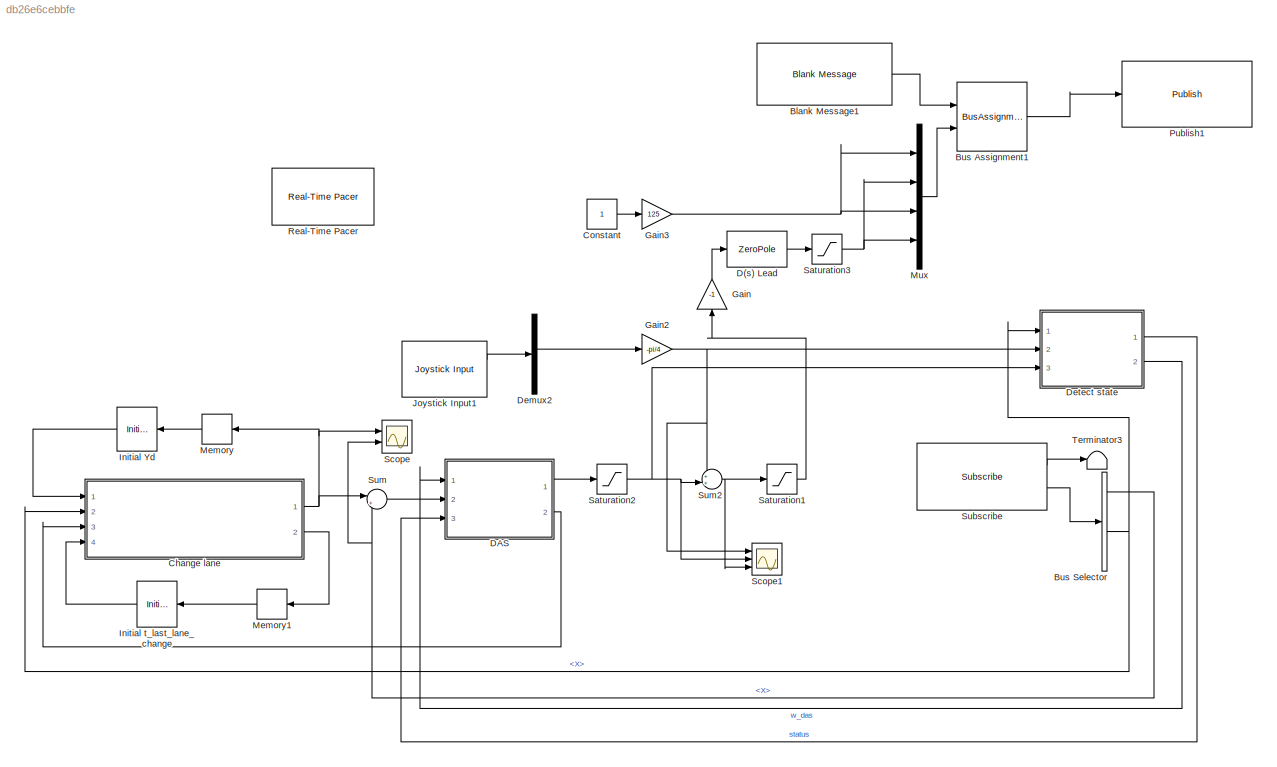
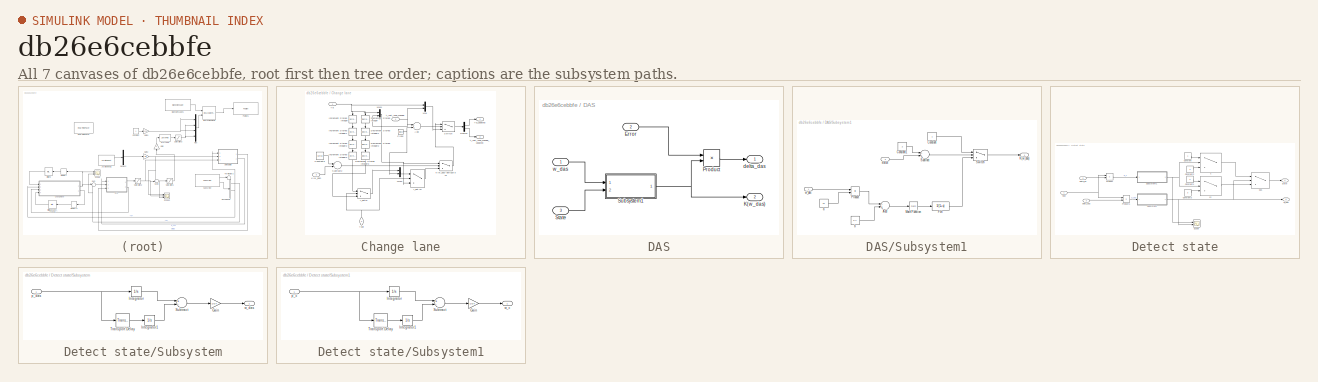
[diagram: thumbnail index - all 7 canvases of the model, root first then tree order]
MODEL slx_db26e6cebbfe
KIND model
CONFIG AbsTol = auto
CONFIG EnableMultiTasking = off
CONFIG FixedStep = auto
CONFIG InitFcn = % T = 20;\na = 0.4;\nb = 10;\nv0 = 1;\ntau = 0.5;\n%tau=10;\n\n% PID Gains\n% kp = 10;\nkp = 2*b/a^2;\nTI = 5;\nTD = 0.1;\n\n% SM Gains\nk0 = 20;\nk1 = 0.05;\n\n% DAS\nDT=4;\n% gamma1sq=0.05;\n% gamma2sq=0.3;\ngamma1sq=0.2;\ngamma2sq=0.1;\n\ninitSub = rossubscriber('/ship/state');\ninitMsg = receive(initSub,10)\n\nYd_init=initMsg.Pose.X
CONFIG MaxStep = auto
CONFIG MinStep = auto
CONFIG RelTol = 1e-3
CONFIG SampleTimeConstraint = Unconstrained
CONFIG Solver = VariableStepAuto
CONFIG SolverName = VariableStepAuto
CONFIG StartTime = 0.0
CONFIG StopTime = 200
BLOCK [Reference] Blank Message1  REF=robotlib/Blank Message
  Ports = [0, 1]
  SourceBlock = robotlib/Blank Message
  SourceLibraryInfo = This block requires Robotics System Toolbox
  SourceProductBaseCode = RO
  SourceProductName = Robotics System Toolbox
  SourceType = ROS Blank Message
BLOCK [BusAssignment] Bus Assignment1
  AssignedSignals = ActuatorInputs
  Ports = [2, 1]
BLOCK [BusSelector] Bus Selector
  OutputAsBus = off
  OutputSignals = Pose.X,Pose.Y,Vel.Linear.X,Vel.Linear.Y
  Ports = [1, 4]
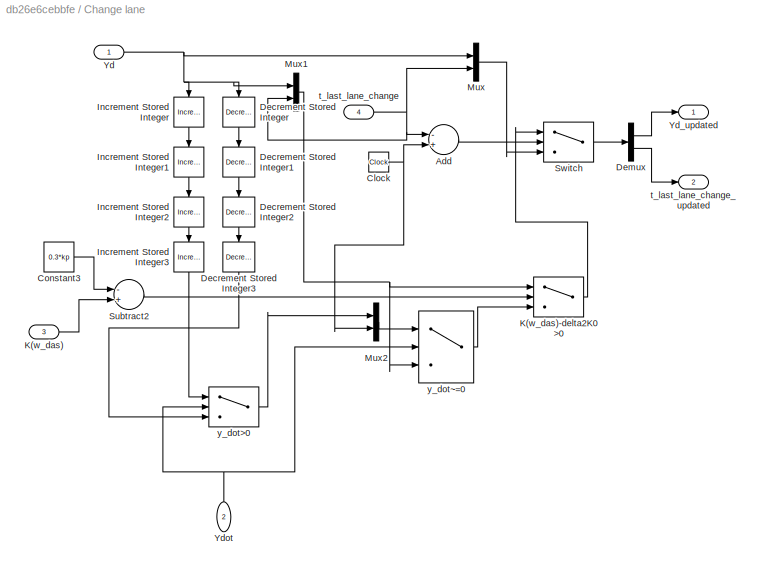
BLOCK [SubSystem] Change lane
  Ports = [4, 2]
  RequestExecContextInheritance = off
BLOCK [Sum] Change lane/Add
  InputSameDT = off
  Inputs = -+
  OutDataTypeStr = Inherit: Inherit via internal rule
  Ports = [2, 1]
  SaturateOnIntegerOverflow = off
BLOCK [Clock] Change lane/Clock
BLOCK [Constant] Change lane/Constant3
  Value = 0.3*kp
BLOCK [Reference] Change lane/Decrement Stored Integer  REF=simulink/Additional Math
& Discrete/Additional Math:
Increment - Decrement/Decrement
Stored Integer
  Ports = [1, 1]
  SourceBlock = simulink/Additional Math\n& Discrete/Additional Math:\nIncrement - Decrement/Decrement\nStored Integer
  SourceProductBaseCode = SL
  SourceProductName = Simulink
  SourceType = Stored Integer Value Decrement
BLOCK [Reference] Change lane/Decrement Stored Integer1  REF=simulink/Additional Math
& Discrete/Additional Math:
Increment - Decrement/Decrement
Stored Integer
  Ports = [1, 1]
  SourceBlock = simulink/Additional Math\n& Discrete/Additional Math:\nIncrement - Decrement/Decrement\nStored Integer
  SourceProductBaseCode = SL
  SourceProductName = Simulink
  SourceType = Stored Integer Value Decrement
BLOCK [Reference] Change lane/Decrement Stored Integer2  REF=simulink/Additional Math
& Discrete/Additional Math:
Increment - Decrement/Decrement
Stored Integer
  Ports = [1, 1]
  SourceBlock = simulink/Additional Math\n& Discrete/Additional Math:\nIncrement - Decrement/Decrement\nStored Integer
  SourceProductBaseCode = SL
  SourceProductName = Simulink
  SourceType = Stored Integer Value Decrement
BLOCK [Reference] Change lane/Decrement Stored Integer3  REF=simulink/Additional Math
& Discrete/Additional Math:
Increment - Decrement/Decrement
Stored Integer
  Ports = [1, 1]
  SourceBlock = simulink/Additional Math\n& Discrete/Additional Math:\nIncrement - Decrement/Decrement\nStored Integer
  SourceProductBaseCode = SL
  SourceProductName = Simulink
  SourceType = Stored Integer Value Decrement
BLOCK [Demux] Change lane/Demux
  DisplayOption = bar
  Outputs = 2
  Ports = [1, 2]
BLOCK [Reference] Change lane/Increment Stored Integer  REF=simulink/Additional Math
& Discrete/Additional Math:
Increment - Decrement/Increment
Stored Integer
  Ports = [1, 1]
  SourceBlock = simulink/Additional Math\n& Discrete/Additional Math:\nIncrement - Decrement/Increment\nStored Integer
  SourceProductBaseCode = SL
  SourceProductName = Simulink
  SourceType = Stored Integer Value Increment
BLOCK [Reference] Change lane/Increment Stored Integer1  REF=simulink/Additional Math
& Discrete/Additional Math:
Increment - Decrement/Increment
Stored Integer
  Ports = [1, 1]
  SourceBlock = simulink/Additional Math\n& Discrete/Additional Math:\nIncrement - Decrement/Increment\nStored Integer
  SourceProductBaseCode = SL
  SourceProductName = Simulink
  SourceType = Stored Integer Value Increment
BLOCK [Reference] Change lane/Increment Stored Integer2  REF=simulink/Additional Math
& Discrete/Additional Math:
Increment - Decrement/Increment
Stored Integer
  Ports = [1, 1]
  SourceBlock = simulink/Additional Math\n& Discrete/Additional Math:\nIncrement - Decrement/Increment\nStored Integer
  SourceProductBaseCode = SL
  SourceProductName = Simulink
  SourceType = Stored Integer Value Increment
BLOCK [Reference] Change lane/Increment Stored Integer3  REF=simulink/Additional Math
& Discrete/Additional Math:
Increment - Decrement/Increment
Stored Integer
  Ports = [1, 1]
  SourceBlock = simulink/Additional Math\n& Discrete/Additional Math:\nIncrement - Decrement/Increment\nStored Integer
  SourceProductBaseCode = SL
  SourceProductName = Simulink
  SourceType = Stored Integer Value Increment
BLOCK [Inport] Change lane/K(w_das)
  IconDisplay = Port number
  Port = 3
BLOCK [Switch] Change lane/K(w_das)-delta2K0>0
  Criteria = u2 > Threshold
  InputSameDT = off
  SaturateOnIntegerOverflow = off
  ZeroCross = off
BLOCK [Mux] Change lane/Mux
  DisplayOption = bar
  Inputs = 2
  Ports = [2, 1]
BLOCK [Mux] Change lane/Mux1
  DisplayOption = bar
  Inputs = 2
  Ports = [2, 1]
BLOCK [Mux] Change lane/Mux2
  DisplayOption = bar
  Inputs = 2
  Ports = [2, 1]
BLOCK [Sum] Change lane/Subtract2
  InputSameDT = off
  Inputs = -+
  OutDataTypeStr = Inherit: Inherit via internal rule
  Ports = [2, 1]
  SaturateOnIntegerOverflow = off
BLOCK [Switch] Change lane/Switch
  Criteria = u2 > Threshold
  InputSameDT = off
  SaturateOnIntegerOverflow = off
  Threshold = 20
BLOCK [Inport] Change lane/Yd
  IconDisplay = Port number
BLOCK [Outport] Change lane/Yd_updated
  IconDisplay = Port number
BLOCK [Inport] Change lane/Ydot
  IconDisplay = Port number
  Port = 2
BLOCK [Inport] Change lane/t_last_lane_change
  IconDisplay = Port number
  Port = 4
BLOCK [Outport] Change lane/t_last_lane_change_updated
  IconDisplay = Port number
  Port = 2
BLOCK [Switch] Change lane/y_dot>0
  Criteria = u2 > Threshold
  InputSameDT = off
  SaturateOnIntegerOverflow = off
BLOCK [Switch] Change lane/y_dot~=0
  Criteria = u2 ~= 0
  InputSameDT = off
  SaturateOnIntegerOverflow = off
BLOCK [Constant] Constant
BLOCK [ZeroPole] D(s) Lead
  Gain = [K2]
  Poles = [-a2]
  Zeros = [-b2]
BLOCK [SubSystem] DAS
  Ports = [3, 2]
  RequestExecContextInheritance = off
BLOCK [Inport] DAS/Error
  IconDisplay = Port number
  Port = 2
BLOCK [Outport] DAS/K(w_das)
  IconDisplay = Port number
  Port = 2
BLOCK [Product] DAS/Product
  InputSameDT = off
  OutDataTypeStr = Inherit: Inherit via internal rule
  Ports = [2, 1]
  RndMeth = Floor
  SaturateOnIntegerOverflow = off
BLOCK [Inport] DAS/State
  IconDisplay = Port number
  Port = 3
BLOCK [SubSystem] DAS/Subsystem1
  Ports = [2, 1]
  RequestExecContextInheritance = off
BLOCK [Sum] DAS/Subsystem1/Add
  InputSameDT = off
  Inputs = -+
  OutDataTypeStr = Inherit: Inherit via internal rule
  Ports = [2, 1]
  SaturateOnIntegerOverflow = off
BLOCK [Constant] DAS/Subsystem1/Constant
BLOCK [Constant] DAS/Subsystem1/Constant1
  Value = 2
BLOCK [Fcn] DAS/Subsystem1/Fcn
  Expr = 1/(1+u)
BLOCK [Outport] DAS/Subsystem1/K(w_das)
  IconDisplay = Port number
BLOCK [Math] DAS/Subsystem1/Math Function
  Ports = [1, 1]
BLOCK [Product] DAS/Subsystem1/Product
  InputSameDT = off
  OutDataTypeStr = Inherit: Inherit via internal rule
  Ports = [2, 1]
  RndMeth = Floor
  SaturateOnIntegerOverflow = off
BLOCK [Sum] DAS/Subsystem1/Subtract
  InputSameDT = off
  Inputs = -+
  OutDataTypeStr = Inherit: Inherit via internal rule
  Ports = [2, 1]
  SaturateOnIntegerOverflow = off
BLOCK [Switch] DAS/Subsystem1/Switch
  Criteria = u2 ~= 0
  InputSameDT = off
  SaturateOnIntegerOverflow = off
BLOCK [Constant] DAS/Subsystem1/a
  Value = 10
BLOCK [Constant] DAS/Subsystem1/b
  Value = 0.4
BLOCK [Inport] DAS/Subsystem1/status
  IconDisplay = Port number
  Port = 2
BLOCK [Inport] DAS/Subsystem1/w_das
  IconDisplay = Port number
BLOCK [Outport] DAS/delta_das
  IconDisplay = Port number
BLOCK [Inport] DAS/w_das
  IconDisplay = Port number
BLOCK [Demux] Demux2
  DisplayOption = bar
  Outputs = 8
  Ports = [1, 8]
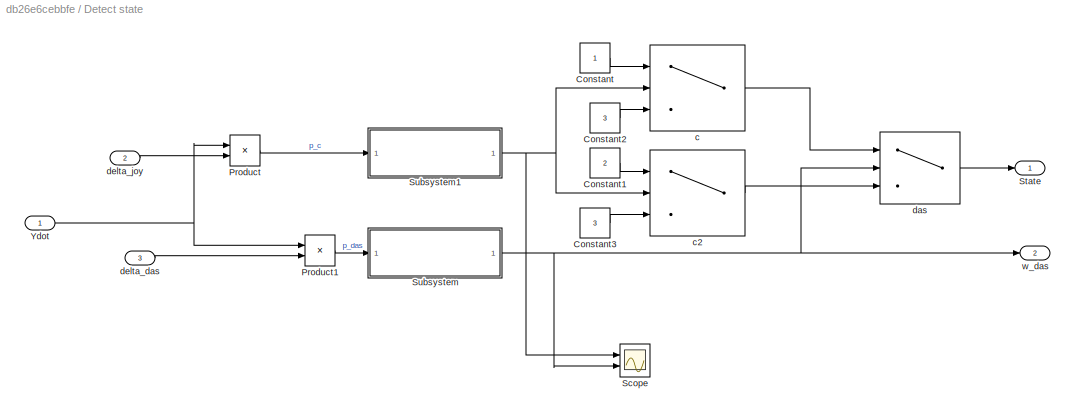
BLOCK [SubSystem] Detect state
  Ports = [3, 2]
  RequestExecContextInheritance = off
BLOCK [Constant] Detect state/Constant
BLOCK [Constant] Detect state/Constant1
  Value = 2
BLOCK [Constant] Detect state/Constant2
  Value = 3
BLOCK [Constant] Detect state/Constant3
  Value = 3
BLOCK [Product] Detect state/Product
  InputSameDT = off
  OutDataTypeStr = Inherit: Inherit via internal rule
  Ports = [2, 1]
  RndMeth = Floor
  SaturateOnIntegerOverflow = off
BLOCK [Product] Detect state/Product1
  InputSameDT = off
  OutDataTypeStr = Inherit: Inherit via internal rule
  Ports = [2, 1]
  RndMeth = Floor
  SaturateOnIntegerOverflow = off
BLOCK [Scope] Detect state/Scope
  Floating = off
  NumInputPorts = 2
  Ports = [2]
  ScopeSpecificationString = Simulink.scopes.TimeScopeBlockCfg('CurrentConfiguration', extmgr.ConfigurationSet(extmgr.Configuration('Core','General UI',true),extmgr.Configuration('Core','Source UI',true),extmgr.Configuration('Sources','WiredSimulink',true,'DataLoggingVariableName','ScopeData1'),extmgr.Configuration('Visuals','Time Domain',true,'SerializedDisplays',{struct('MinYLimReal','-0.63229','MaxYLimReal','0.27954','YLab...<+1409ch>
BLOCK [Outport] Detect state/State
  IconDisplay = Port number
BLOCK [SubSystem] Detect state/Subsystem
  Ports = [1, 1]
  RequestExecContextInheritance = off
BLOCK [Gain] Detect state/Subsystem/Gain
  Gain = 1/DT
  OutDataTypeStr = Inherit: Inherit via internal rule
  ParamDataTypeStr = Inherit: Inherit via internal rule
  SaturateOnIntegerOverflow = off
BLOCK [Integrator] Detect state/Subsystem/Integrator
  Ports = [1, 1]
BLOCK [Integrator] Detect state/Subsystem/Integrator1
  Ports = [1, 1]
BLOCK [Sum] Detect state/Subsystem/Subtract
  InputSameDT = off
  Inputs = +-
  OutDataTypeStr = Inherit: Inherit via internal rule
  Ports = [2, 1]
  SaturateOnIntegerOverflow = off
BLOCK [TransportDelay] Detect state/Subsystem/Transport Delay
  DelayTime = DT
  Ports = [1, 1]
BLOCK [Inport] Detect state/Subsystem/p_das
  IconDisplay = Port number
BLOCK [Outport] Detect state/Subsystem/w_das
  IconDisplay = Port number
BLOCK [SubSystem] Detect state/Subsystem1
  Ports = [1, 1]
  RequestExecContextInheritance = off
BLOCK [Gain] Detect state/Subsystem1/Gain
  Gain = 1/DT
  OutDataTypeStr = Inherit: Inherit via internal rule
  ParamDataTypeStr = Inherit: Inherit via internal rule
  SaturateOnIntegerOverflow = off
BLOCK [Integrator] Detect state/Subsystem1/Integrator
  Ports = [1, 1]
BLOCK [Integrator] Detect state/Subsystem1/Integrator1
  Ports = [1, 1]
BLOCK [Sum] Detect state/Subsystem1/Subtract
  InputSameDT = off
  Inputs = +-
  OutDataTypeStr = Inherit: Inherit via internal rule
  Ports = [2, 1]
  SaturateOnIntegerOverflow = off
BLOCK [TransportDelay] Detect state/Subsystem1/Transport Delay
  DelayTime = DT
  Ports = [1, 1]
BLOCK [Inport] Detect state/Subsystem1/p_c
  IconDisplay = Port number
BLOCK [Outport] Detect state/Subsystem1/w_c
  IconDisplay = Port number
BLOCK [Inport] Detect state/Ydot
  IconDisplay = Port number
BLOCK [Switch] Detect state/c
  InputSameDT = off
  SaturateOnIntegerOverflow = off
  Threshold = -gamma1sq
BLOCK [Switch] Detect state/c2
  InputSameDT = off
  SaturateOnIntegerOverflow = off
  Threshold = -gamma1sq
BLOCK [Switch] Detect state/das
  InputSameDT = off
  SaturateOnIntegerOverflow = off
  Threshold = -gamma2sq
BLOCK [Inport] Detect state/delta_das
  IconDisplay = Port number
  Port = 3
BLOCK [Inport] Detect state/delta_joy
  IconDisplay = Port number
  Port = 2
BLOCK [Outport] Detect state/w_das
  IconDisplay = Port number
  Port = 2
BLOCK [Gain] Gain
  Gain = -1
  OutDataTypeStr = Inherit: Inherit via internal rule
  ParamDataTypeStr = Inherit: Inherit via internal rule
  SaturateOnIntegerOverflow = off
BLOCK [Gain] Gain2
  Gain = -pi/4
  OutDataTypeStr = Inherit: Inherit via internal rule
  ParamDataTypeStr = Inherit: Inherit via internal rule
  SaturateOnIntegerOverflow = off
BLOCK [Gain] Gain3
  Gain = 125
  OutDataTypeStr = Inherit: Inherit via internal rule
  ParamDataTypeStr = Inherit: Inherit via internal rule
  SaturateOnIntegerOverflow = off
BLOCK [InitialCondition] Initial Yd
  Value = Yd_init
BLOCK [InitialCondition] Initial t_last_lane_change
  Value = 0
BLOCK [Reference] Joystick Input1  REF=vrlib/Joystick Input
  Ports = [0, 2]
  SourceBlock = vrlib/Joystick Input
  SourceProductBaseCode = VR
  SourceProductName = Simulink 3D Animation
  SourceType = Joystick Input
BLOCK [Memory] Memory
BLOCK [Memory] Memory1
BLOCK [Mux] Mux
  DisplayOption = bar
  Ports = [4, 1]
BLOCK [Reference] Publish1  REF=robotlib/Publish
  Ports = [1]
  SourceBlock = robotlib/Publish
  SourceLibraryInfo = This block requires Robotics System Toolbox
  SourceProductBaseCode = RO
  SourceProductName = Robotics System Toolbox
  SourceType = ROS Publish
BLOCK [Reference] Real-Time Pacer  REF=realtime_pacer_lib/Real-Time Pacer
  Ports = []
  SourceBlock = realtime_pacer_lib/Real-Time Pacer
  SourceType = RealTime_Pacer
BLOCK [Saturate] Saturation1
  InputPortMap = u0
  LowerLimit = -pi/4
  Ports = [1, 1]
  UpperLimit = pi/4
BLOCK [Saturate] Saturation2
  InputPortMap = u0
  LowerLimit = -pi/4
  Ports = [1, 1]
  UpperLimit = pi/4
BLOCK [Saturate] Saturation3
  InputPortMap = u0
  LowerLimit = -pi/4
  Ports = [1, 1]
  UpperLimit = pi/4
BLOCK [Scope] Scope
  Floating = off
  NumInputPorts = 2
  Ports = [2]
  ScopeSpecificationString = Simulink.scopes.TimeScopeBlockCfg('CurrentConfiguration', extmgr.ConfigurationSet(extmgr.Configuration('Core','General UI',true),extmgr.Configuration('Core','Source UI',true),extmgr.Configuration('Sources','WiredSimulink',true,'DataLoggingVariableName','ScopeData1'),extmgr.Configuration('Visuals','Time Domain',true,'SerializedDisplays',{struct('MinYLimReal','-8.07766','MaxYLimReal','21.82224','YLa...<+1498ch>
BLOCK [Scope] Scope1
  Floating = off
  NumInputPorts = 3
  Ports = [3]
  ScopeSpecificationString = Simulink.scopes.TimeScopeBlockCfg('CurrentConfiguration', extmgr.ConfigurationSet(extmgr.Configuration('Core','General UI',true),extmgr.Configuration('Core','Source UI',true),extmgr.Configuration('Sources','WiredSimulink',true,'DataLoggingVariableName','ScopeData2'),extmgr.Configuration('Visuals','Time Domain',true,'SerializedDisplays',{struct('MinYLimReal','-0.98175','MaxYLimReal','0.98175','YLab...<+1479ch>
BLOCK [Reference] Subscribe  REF=robotlib/Subscribe
  Ports = [0, 2]
  SourceBlock = robotlib/Subscribe
  SourceLibraryInfo = This block requires Robotics System Toolbox
  SourceProductBaseCode = RO
  SourceProductName = Robotics System Toolbox
  SourceType = ROS Subscribe
BLOCK [Sum] Sum
  IconShape = round
  InputSameDT = off
  Inputs = |+-
  OutDataTypeStr = Inherit: Inherit via internal rule
  Ports = [2, 1]
  SaturateOnIntegerOverflow = off
BLOCK [Sum] Sum2
  IconShape = round
  InputSameDT = off
  Inputs = ++|
  OutDataTypeStr = Inherit: Inherit via internal rule
  Ports = [2, 1]
  SaturateOnIntegerOverflow = off
BLOCK [Terminator] Terminator3
LINE Blank Message1:1 -> Bus Assignment1:1
LINE Bus Assignment1:1 -> Publish1:1
NET Bus Selector:1 -> Scope:2, Sum:2
NET Bus Selector:3 -> Change lane:2, Detect state:1
LINE Change lane/Add:1 -> Change lane/Switch:2
NET Change lane/Clock:1 -> Change lane/Add:2, Change lane/Mux2:2
LINE Change lane/Constant3:1 -> Change lane/Subtract2:1
LINE Change lane/Decrement Stored Integer1:1 -> Change lane/Decrement Stored Integer2:1
LINE Change lane/Decrement Stored Integer2:1 -> Change lane/Decrement Stored Integer3:1
LINE Change lane/Decrement Stored Integer3:1 -> Change lane/y_dot>0:3
LINE Change lane/Decrement Stored Integer:1 -> Change lane/Decrement Stored Integer1:1
LINE Change lane/Demux:1 -> Change lane/Yd_updated:1
LINE Change lane/Demux:2 -> Change lane/t_last_lane_change_updated:1
LINE Change lane/Increment Stored Integer1:1 -> Change lane/Increment Stored Integer2:1
LINE Change lane/Increment Stored Integer2:1 -> Change lane/Increment Stored Integer3:1
LINE Change lane/Increment Stored Integer3:1 -> Change lane/y_dot>0:1
LINE Change lane/Increment Stored Integer:1 -> Change lane/Increment Stored Integer1:1
LINE Change lane/K(w_das)-delta2K0>0:1 -> Change lane/Switch:1
LINE Change lane/K(w_das):1 -> Change lane/Subtract2:2
NET Change lane/Mux1:1 -> Change lane/K(w_das)-delta2K0>0:1, Change lane/y_dot~=0:3
LINE Change lane/Mux2:1 -> Change lane/y_dot~=0:1
LINE Change lane/Mux:1 -> Change lane/Switch:3
LINE Change lane/Subtract2:1 -> Change lane/K(w_das)-delta2K0>0:2
LINE Change lane/Switch:1 -> Change lane/Demux:1
NET Change lane/Yd:1 -> Change lane/Decrement Stored Integer:1, Change lane/Increment Stored Integer:1, Change lane/Mux1:1, Change lane/Mux:1
NET Change lane/Ydot:1 -> Change lane/y_dot>0:2, Change lane/y_dot~=0:2
NET Change lane/t_last_lane_change:1 -> Change lane/Add:1, Change lane/Mux1:2, Change lane/Mux:2
LINE Change lane/y_dot>0:1 -> Change lane/Mux2:1
LINE Change lane/y_dot~=0:1 -> Change lane/K(w_das)-delta2K0>0:3
NET Change lane:1 -> Memory:1, Scope:1, Sum:1
LINE Change lane:2 -> Memory1:1
LINE Constant:1 -> Gain3:1
LINE D(s) Lead:1 -> Saturation3:1
LINE DAS/Error:1 -> DAS/Product:1
LINE DAS/Product:1 -> DAS/delta_das:1
LINE DAS/State:1 -> DAS/Subsystem1:2
LINE DAS/Subsystem1/Add:1 -> DAS/Subsystem1/Math Function:1
LINE DAS/Subsystem1/Constant1:1 -> DAS/Subsystem1/Subtract:1
LINE DAS/Subsystem1/Constant:1 -> DAS/Subsystem1/Switch:1
LINE DAS/Subsystem1/Fcn:1 -> DAS/Subsystem1/Switch:3
LINE DAS/Subsystem1/Math Function:1 -> DAS/Subsystem1/Fcn:1
LINE DAS/Subsystem1/Product:1 -> DAS/Subsystem1/Add:1
LINE DAS/Subsystem1/Subtract:1 -> DAS/Subsystem1/Switch:2
LINE DAS/Subsystem1/Switch:1 -> DAS/Subsystem1/K(w_das):1
LINE DAS/Subsystem1/a:1 -> DAS/Subsystem1/Product:2
LINE DAS/Subsystem1/b:1 -> DAS/Subsystem1/Add:2
LINE DAS/Subsystem1/status:1 -> DAS/Subsystem1/Subtract:2
LINE DAS/Subsystem1/w_das:1 -> DAS/Subsystem1/Product:1
NET DAS/Subsystem1:1 -> DAS/K(w_das):1, DAS/Product:2
LINE DAS/w_das:1 -> DAS/Subsystem1:1
LINE DAS:1 -> Saturation2:1
LINE DAS:2 -> Change lane:3
LINE Demux2:4 -> Gain2:1
LINE Detect state/Constant1:1 -> Detect state/c2:1
LINE Detect state/Constant2:1 -> Detect state/c:3
LINE Detect state/Constant3:1 -> Detect state/c2:3
LINE Detect state/Constant:1 -> Detect state/c:1
LINE Detect state/Product1:1 -> Detect state/Subsystem:1
LINE Detect state/Product:1 -> Detect state/Subsystem1:1
LINE Detect state/Subsystem/Gain:1 -> Detect state/Subsystem/w_das:1
LINE Detect state/Subsystem/Integrator1:1 -> Detect state/Subsystem/Subtract:2
LINE Detect state/Subsystem/Integrator:1 -> Detect state/Subsystem/Subtract:1
LINE Detect state/Subsystem/Subtract:1 -> Detect state/Subsystem/Gain:1
LINE Detect state/Subsystem/Transport Delay:1 -> Detect state/Subsystem/Integrator1:1
NET Detect state/Subsystem/p_das:1 -> Detect state/Subsystem/Integrator:1, Detect state/Subsystem/Transport Delay:1
LINE Detect state/Subsystem1/Gain:1 -> Detect state/Subsystem1/w_c:1
LINE Detect state/Subsystem1/Integrator1:1 -> Detect state/Subsystem1/Subtract:2
LINE Detect state/Subsystem1/Integrator:1 -> Detect state/Subsystem1/Subtract:1
LINE Detect state/Subsystem1/Subtract:1 -> Detect state/Subsystem1/Gain:1
LINE Detect state/Subsystem1/Transport Delay:1 -> Detect state/Subsystem1/Integrator1:1
NET Detect state/Subsystem1/p_c:1 -> Detect state/Subsystem1/Integrator:1, Detect state/Subsystem1/Transport Delay:1
NET Detect state/Subsystem1:1 -> Detect state/Scope:1, Detect state/c2:2, Detect state/c:2
NET Detect state/Subsystem:1 -> Detect state/Scope:2, Detect state/das:2, Detect state/w_das:1
NET Detect state/Ydot:1 -> Detect state/Product1:1, Detect state/Product:1
LINE Detect state/c2:1 -> Detect state/das:3
LINE Detect state/c:1 -> Detect state/das:1
LINE Detect state/das:1 -> Detect state/State:1
LINE Detect state/delta_das:1 -> Detect state/Product1:2
LINE Detect state/delta_joy:1 -> Detect state/Product:2
LINE Detect state:1 -> DAS:3
LINE Detect state:2 -> DAS:1
NET Gain2:1 -> Detect state:2, Scope1:1, Sum2:1
NET Gain3:1 -> Mux:1, Mux:3
LINE Gain:1 -> D(s) Lead:1
LINE Initial Yd:1 -> Change lane:1
LINE Initial t_last_lane_change:1 -> Change lane:4
LINE Joystick Input1:1 -> Demux2:1
LINE Memory1:1 -> Initial t_last_lane_change:1
LINE Memory:1 -> Initial Yd:1
LINE Mux:1 -> Bus Assignment1:2
LINE Saturation1:1 -> Gain:1
NET Saturation2:1 -> Detect state:3, Scope1:2, Sum2:2
NET Saturation3:1 -> Mux:2, Mux:4
LINE Subscribe:1 -> Terminator3:1
LINE Subscribe:2 -> Bus Selector:1
NET Sum2:1 -> Saturation1:1, Scope1:3
LINE Sum:1 -> DAS:2
note: NET lines group one-source signal fan-out (src -> all destinations, sorted); 1:1 wires keep LINE
